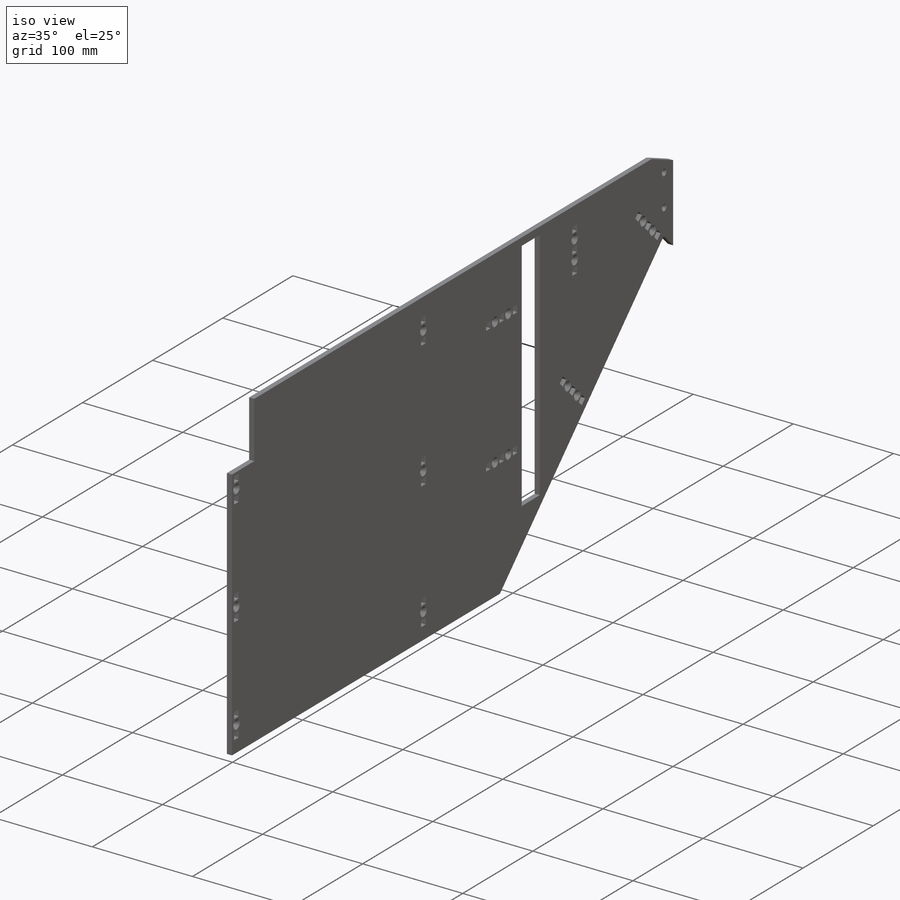
[diagram: iso view]
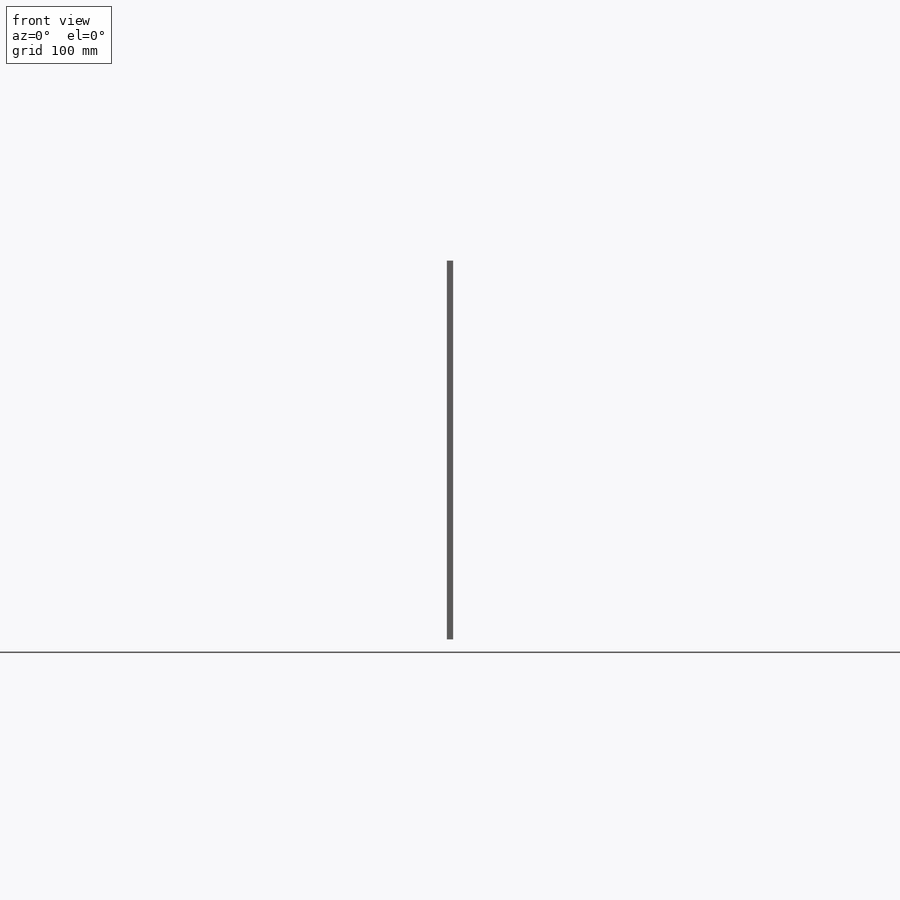
[diagram: front view]
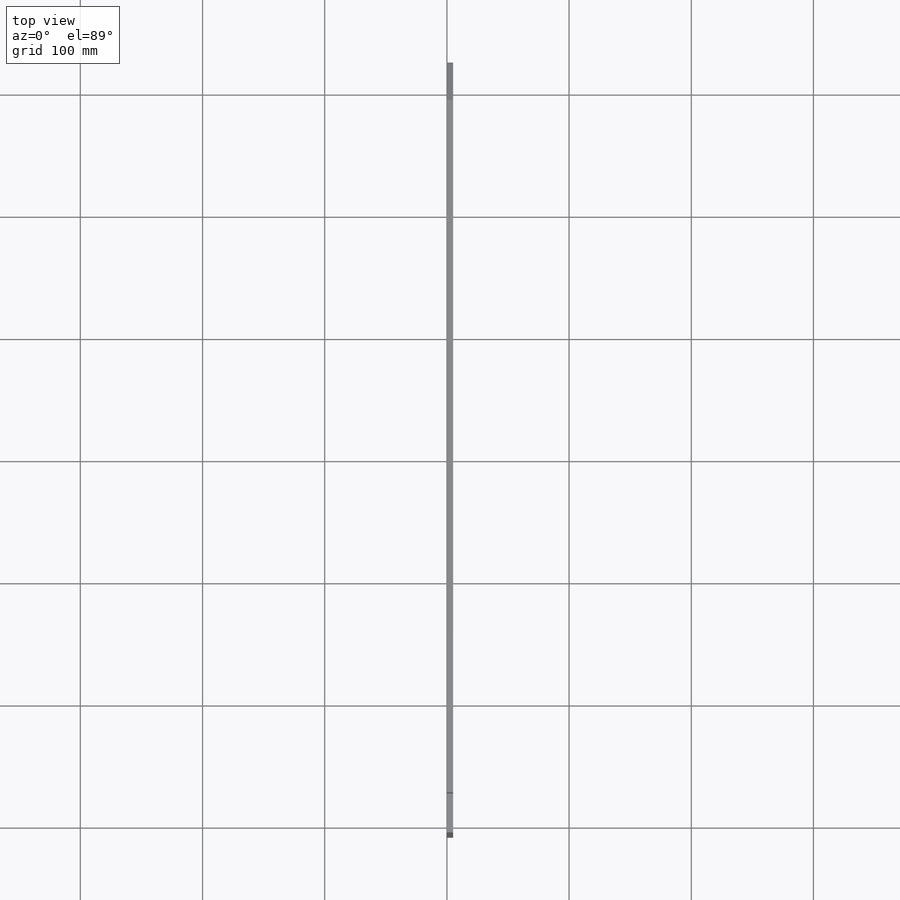
[diagram: top view]
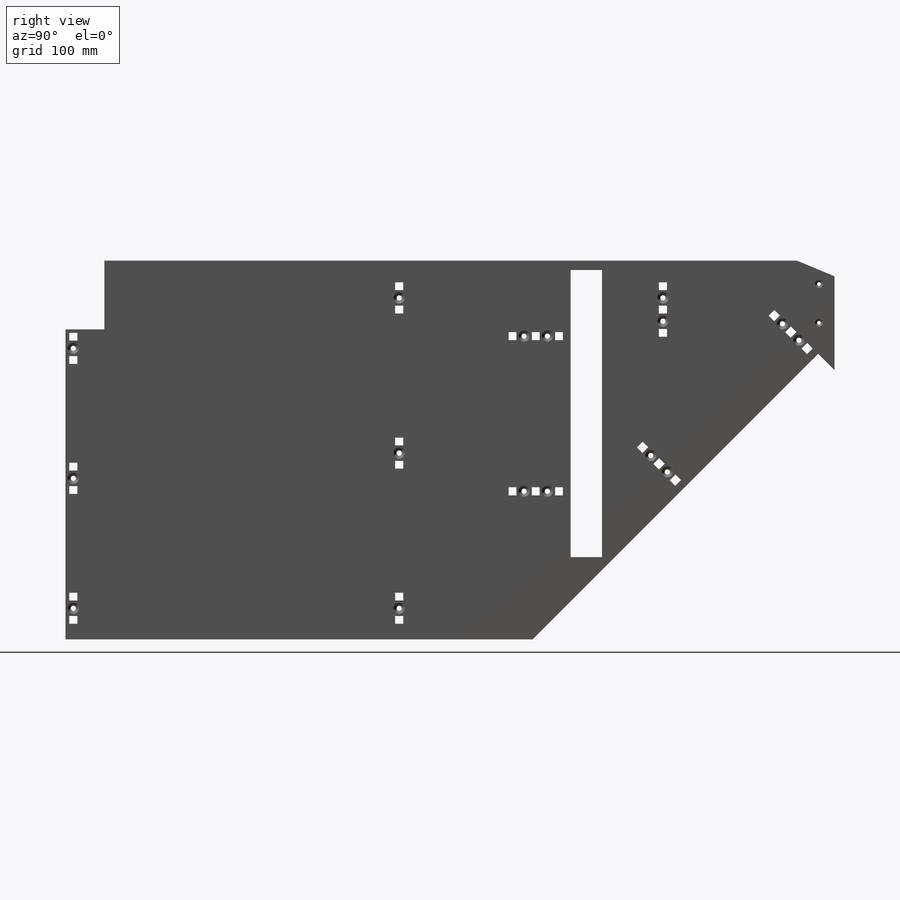
[diagram: right view]
SOLIDWORKS PART (.sldprt)
format: sldprt  version: not decoded by parser v0  size: 1,142,272 bytes
history: native  units: mm
features: extrude x11, sketch x10, cut_extrude x5, chamfer x2, hole x2, material x1 (+12 scaffold rows collapsed)
feature tree (43):
  scaffold x12  (default folders/planes/origin — collapsed)
  material  "Delrin 2700 NC010, Low Viscosity Acetal Copolymer (SS)"
  sketch  "Sketch1"  dims[c1.D1=914.4mm c1.D2=355.6mm c1.D3=~17.921975mm c2.D3=150.0deg c2.D4=304.8mm c2.D5=304.8mm c2.D6=76.2mm c2.D7=25.4mm c2.D8=914.4mm c3.D7=25.4mm c3.D8=~137.521024mm c3.D1=914.4mm c3.D9=~294.278976mm c4.D1=355.6mm c4.D2=355.6mm c4.D9=~1001.121024mm c4.D3=~87.988181mm c5.D3=45.0deg c5.D1=234.95mm c5.D2=25.654mm c5.D5=254.0mm c5.D7=330.2mm c5.D8=5.08mm c5.D9=2.54mm c5.D10=3.81mm c5.D11=79.375mm c5.D12=615.95mm c5.D4=304.8mm c5.D13=~251.447171mm c5.D14=18.8976mm c5.D15=~7.453613mm]
  extrude  "Boss-Extrude1"  Depth=5.08mm
  sketch  "Sketch2"  dims[D1=31.75mm D2=56.261mm]
  cut_extrude  "Cut-Extrude1"  [1 undecoded]
  chamfer  "Chamfer1"  Distance=12.7mm Angle=67.5deg
  sketch  "Sketch4"  dims[D1=4.3053mm D2=6.35mm D3=6.604mm D4=12.7mm D5=19.05mm]
  extrude  "BOLT_HOLE_2X-7"  Depth=6.35mm
  cut_extrude  "Cut-Extrude5"  [1 undecoded]
  sketch  "Sketch5"
  extrude  "BOLT_HOLE_2X-1"  [1 undecoded]
  extrude  "BOLT_HOLE_2X-2"  Depth=6.35mm
  cut_extrude  "Cut-Extrude6"  [1 undecoded]
  sketch  "Sketch6"
  extrude  "BOLT_HOLE_2X-4"  [1 undecoded]
  extrude  "BOLT_HOLE-6"  [1 undecoded]
  chamfer  "BOLT_HOLE"  Distance=4.3053mm
  extrude  "BOLT_HOLE-7"  [1 undecoded]
  extrude  "BOLT_HOLE-8"  [1 undecoded]
  extrude  "BOLT_HOLE-9"  [1 undecoded]
  extrude  "BOLT_HOLE-10"  [1 undecoded]
  extrude  "BOLT_HOLE-11"  Depth=382.27mm
  cut_extrude  "Cut-Extrude7"  [1 undecoded]
  hole  "CSK for #8 Flat Head Socket Cap Screw2"  Diameter=4.3053mm Depth=5.08mm
  sketch  "Sketch10"
  sketch  "Sketch9"  dims[hole-wizard template sketch: 55 standard entries collapsed; hole parameters kept: c17.Thru Hole Depth=5.08mm c17.Near C'Sink Dia.=9.1186mm c17.D4=~3.666174mm c17.Near C'Sink Angle=82.0deg]
  sketch  "Sketch11"  dims[D1=304.8mm]
  cut_extrude  "Cut-Extrude8"  Depth=0.0508mm
  hole  "CSK for #4 Flat Head Socket Cap Screw1"  Diameter=2.9464mm Depth=5.08mm
  sketch  "Sketch13"  dims[D1=12.7mm D2=6.35mm D3=31.75mm]
  sketch  "Sketch12"  dims[hole-wizard template sketch: 55 standard entries collapsed; hole parameters kept: c17.Thru Hole Depth=5.08mm c17.Near C'Sink Dia.=6.477mm c17.D4=~3.666174mm c17.Near C'Sink Angle=82.0deg]
decode coverage: 16 of 30 modeling features carry decoded parameters
note: ~ marks probable driven/reference dimensions
note: 11 parameter values undecoded
summary: no parameter record found for 11 features
note: suppression state not decoded; provenance and decode notes live in map.json
